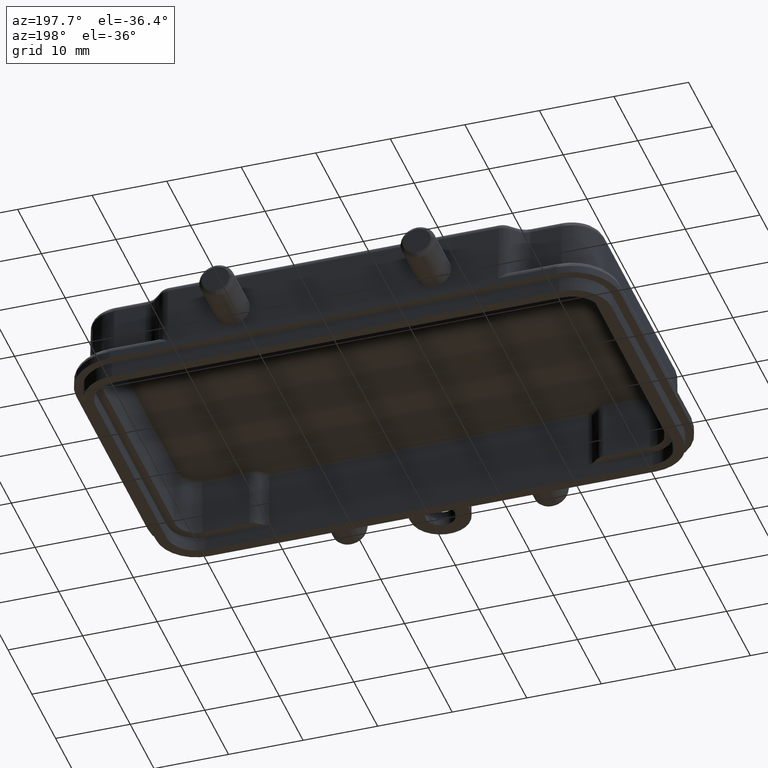
[diagram: clean part render]
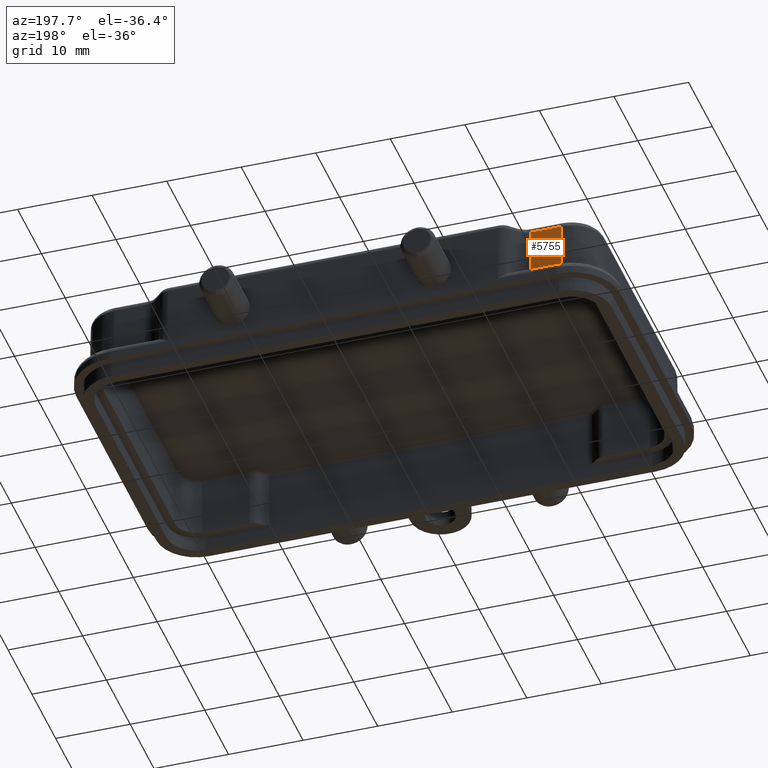
[diagram: same view with one face highlighted and labeled with its STEP entity id]
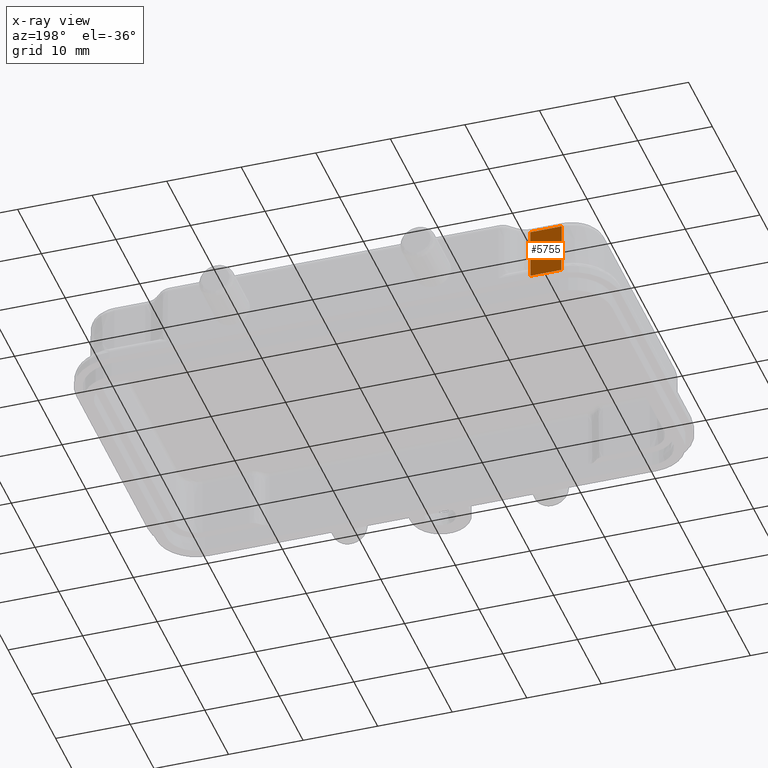
[diagram: x-ray of the same camera — body ghosted, the highlighted face saturated]
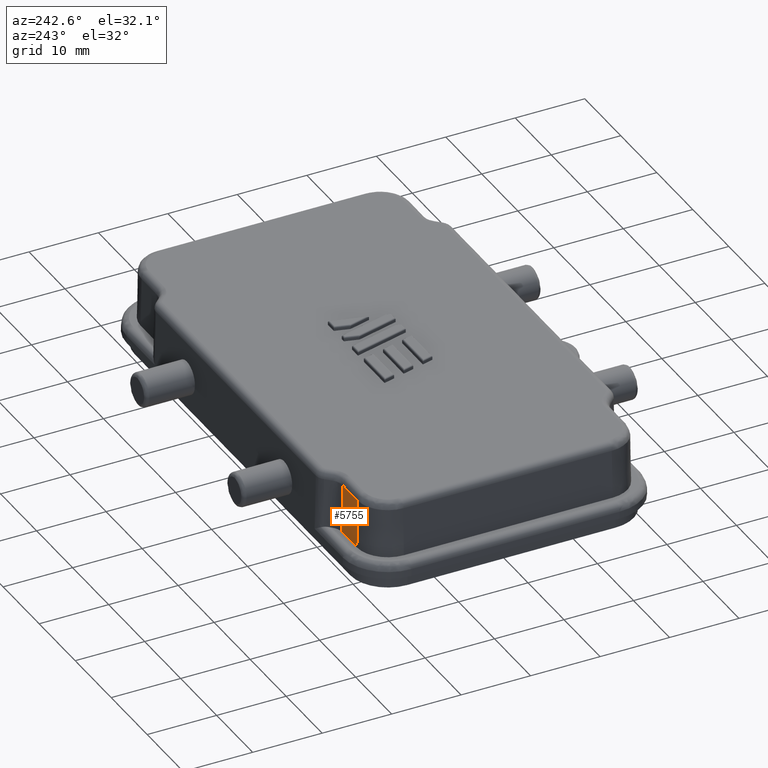
[diagram: same view with one face highlighted and labeled with its STEP entity id]
A machine part, auxiliary view. The second image highlights one B-rep face of the part: STEP entity #5755.
The next image is the same camera in x-ray: the body ghosted, the highlighted face saturated — about 0% of this face is hidden behind the body in this view.
A second angle (auxiliary view) of the same face is appended — the face is thin or edge-on in the first view.
In plain terms, the highlighted planar face has unit normal (-0, 0.9998, 0.0175).
Its self-contained STEP definition (entity closure, byte-faithful):
#234 = EDGE_CURVE ( 'NONE', #5447, #790, #5858, .T. ) ;
#340 = CARTESIAN_POINT ( 'NONE',  ( 1.181102362204724310, 0.7615196764865548307, 0.4337579687573740461 ) ) ;
#465 = LINE ( 'NONE', #4886, #3806 ) ;
#735 = LINE ( 'NONE', #5302, #1355 ) ;
#790 = VERTEX_POINT ( 'NONE', #5088 ) ;
#887 = DIRECTION ( 'NONE',  ( -0.000000000000000000, 0.9998476951563912696, 0.01745240643728350471 ) ) ;
#890 = EDGE_CURVE ( 'NONE', #5447, #6221, #735, .T. ) ;
#1067 = AXIS2_PLACEMENT_3D ( 'NONE', #6426, #887, #5346 ) ;
#1304 = ORIENTED_EDGE ( 'NONE', *, *, #890, .T. ) ;
#1355 = VECTOR ( 'NONE', #3620, 39.37007874015748143 ) ;
#1401 = EDGE_CURVE ( 'NONE', #790, #5578, #5973, .T. ) ;
#1559 = DIRECTION ( 'NONE',  ( -1.000000000000000000, -0.000000000000000000, -0.000000000000000000 ) ) ;
#1590 = DIRECTION ( 'NONE',  ( -3.205955048462721132E-18, 0.01745240641734325387, -0.9998476951567392135 ) ) ;
#1851 = VECTOR ( 'NONE', #1590, 39.37007874015748143 ) ;
#2559 = ORIENTED_EDGE ( 'NONE', *, *, #234, .F. ) ;
#2654 = CARTESIAN_POINT ( 'NONE',  ( -1.181102362204787593, 343.6855235966793316, -19645.66929133858503 ) ) ;
#3620 = DIRECTION ( 'NONE',  ( -0.000000000000000000, 0.01745240643728350471, -0.9998476951563912696 ) ) ;
#3769 = EDGE_CURVE ( 'NONE', #6221, #5578, #465, .T. ) ;
#3806 = VECTOR ( 'NONE', #1559, 39.37007874015748143 ) ;
#3898 = CARTESIAN_POINT ( 'NONE',  ( -1.016867209635677227, 0.7663421208717874356, 0.1574803149610058961 ) ) ;
#4330 = CARTESIAN_POINT ( 'NONE',  ( -1.181102362204724310, 0.7663421208725530454, 0.1574803149613818731 ) ) ;
#4768 = PLANE ( 'NONE',  #1067 ) ;
#4886 = CARTESIAN_POINT ( 'NONE',  ( 1.437007874015747921, 0.7663421208717939859, 0.1574803149606299191 ) ) ;
#5088 = CARTESIAN_POINT ( 'NONE',  ( -1.181102362204724310, 0.7615196764883220837, 0.4337579687576293419 ) ) ;
#5302 = CARTESIAN_POINT ( 'NONE',  ( -1.016867209635677227, 0.7677165354330708347, 0.07874015748031495954 ) ) ;
#5306 = FACE_OUTER_BOUND ( 'NONE', #7155, .T. ) ;
#5316 = CARTESIAN_POINT ( 'NONE',  ( -1.016867209635677227, 0.7615196764883143121, 0.4337579687576293419 ) ) ;
#5346 = DIRECTION ( 'NONE',  ( 0.000000000000000000, -0.01745240643728350471, 0.9998476951563912696 ) ) ;
#5374 = VECTOR ( 'NONE', #6896, 39.37007874015748143 ) ;
#5447 = VERTEX_POINT ( 'NONE', #5316 ) ;
#5578 = VERTEX_POINT ( 'NONE', #4330 ) ;
#5755 = ADVANCED_FACE ( 'NONE', ( #5306 ), #4768, .T. ) ;
#5858 = LINE ( 'NONE', #340, #5374 ) ;
#5927 = ORIENTED_EDGE ( 'NONE', *, *, #1401, .F. ) ;
#5973 = LINE ( 'NONE', #2654, #1851 ) ;
#6221 = VERTEX_POINT ( 'NONE', #3898 ) ;
#6426 = CARTESIAN_POINT ( 'NONE',  ( 1.437007874015747921, 0.7677165354330708347, 0.07874015748031495954 ) ) ;
#6618 = ORIENTED_EDGE ( 'NONE', *, *, #3769, .T. ) ;
#6896 = DIRECTION ( 'NONE',  ( -1.000000000000000000, 0.000000000000000000, 0.000000000000000000 ) ) ;
#7155 = EDGE_LOOP ( 'NONE', ( #1304, #6618, #5927, #2559 ) ) ;